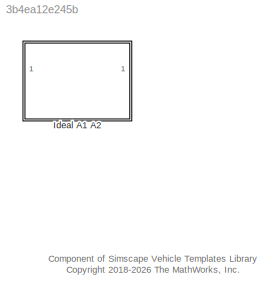
MODEL slx_3b4ea12e245b
KIND library
CONFIG SolverName = VariableStepAuto
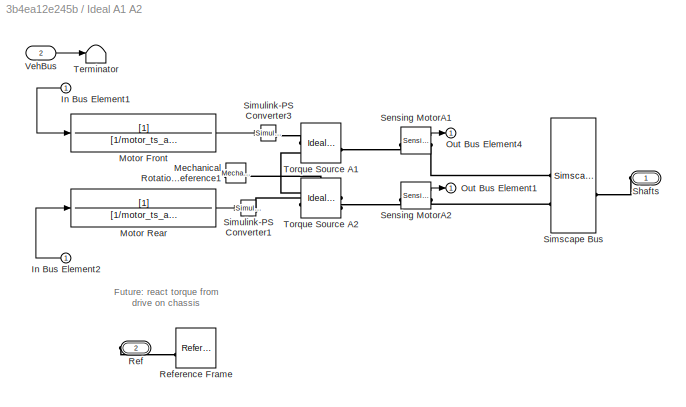
BLOCK [SubSystem] Ideal A1 A2
  VariantControl = IdealTwoMotor
BLOCK [Inport] Ideal A1 A2/In Bus Element1
BLOCK [Inport] Ideal A1 A2/In Bus Element2
BLOCK [Reference] Ideal A1 A2/Mechanical Rotational Reference1  REF=fl_lib/Mechanical/Rotational Elements/Mechanical
Rotational Reference
  NameLocation = top
  SourceBlock = fl_lib/Mechanical/Rotational Elements/Mechanical\nRotational Reference
  SourceType = Mechanical\nRotational Reference
BLOCK [TransferFcn] Ideal A1 A2/Motor Front
  Denominator = [1/motor_ts_a1 1]
BLOCK [TransferFcn] Ideal A1 A2/Motor Rear
  Denominator = [1/motor_ts_a2 1]
BLOCK [Outport] Ideal A1 A2/Out Bus Element1
  VectorParamsAs1DForOutWhenUnconnected = off
BLOCK [Outport] Ideal A1 A2/Out Bus Element4
  VectorParamsAs1DForOutWhenUnconnected = off
BLOCK [PMIOPort] Ideal A1 A2/Ref
  NameLocation = top
  Port = 2
  Side = Right
BLOCK [Reference] Ideal A1 A2/Reference Frame  REF=sm_lib/Frames and
Transforms/Reference
Frame
  NameLocation = top
  SourceBlock = sm_lib/Frames and\nTransforms/Reference\nFrame
  SourceType = Reference\nFrame
BLOCK [Reference] Ideal A1 A2/Sensing MotorA1  REF=Power_Components/Sensing Ideal Motor
  SourceBlock = Power_Components/Sensing Ideal Motor
  SourceType = SubSystem
BLOCK [Reference] Ideal A1 A2/Sensing MotorA2  REF=Power_Components/Sensing Ideal Motor
  SourceBlock = Power_Components/Sensing Ideal Motor
  SourceType = SubSystem
BLOCK [PMIOPort] Ideal A1 A2/Shafts
  NameLocation = top
  Side = Left
BLOCK [SimscapeBus] Ideal A1 A2/Simscape Bus
  HierarchyStrings = ShaftA1;ShaftA2
BLOCK [Reference] Ideal A1 A2/Simulink-PS Converter1  REF=nesl_utility/Simulink-PS
Converter
  SourceBlock = nesl_utility/Simulink-PS\nConverter
  SourceType = Simulink-PS\nConverter
BLOCK [Reference] Ideal A1 A2/Simulink-PS Converter3  REF=nesl_utility/Simulink-PS
Converter
  NameLocation = top
  SourceBlock = nesl_utility/Simulink-PS\nConverter
  SourceType = Simulink-PS\nConverter
BLOCK [Terminator] Ideal A1 A2/Terminator
BLOCK [Reference] Ideal A1 A2/Torque Source A1  REF=fl_lib/Mechanical/Mechanical Sources/Ideal Torque Source
  NameLocation = top
  SourceBlock = fl_lib/Mechanical/Mechanical Sources/Ideal Torque Source
  SourceType = Ideal Torque Source
BLOCK [Reference] Ideal A1 A2/Torque Source A2  REF=fl_lib/Mechanical/Mechanical Sources/Ideal Torque Source
  SourceBlock = fl_lib/Mechanical/Mechanical Sources/Ideal Torque Source
  SourceType = Ideal Torque Source
BLOCK [Inport] Ideal A1 A2/VehBus
  Port = 2
ANNOTATION (root): Component of Simscape Vehicle Templates Library <copyright redacted>
ANNOTATION Ideal A1 A2: Future: react torque from drive on chassis
LINE Ideal A1 A2/In Bus Element1:1 -> Ideal A1 A2/Motor Front:1
LINE Ideal A1 A2/In Bus Element2:1 -> Ideal A1 A2/Motor Rear:1
LINE Ideal A1 A2/Motor Front:1 -> Ideal A1 A2/Simulink-PS Converter3:1
LINE Ideal A1 A2/Motor Rear:1 -> Ideal A1 A2/Simulink-PS Converter1:1
LINE Ideal A1 A2/Sensing MotorA1:1 -> Ideal A1 A2/Out Bus Element4:1
LINE Ideal A1 A2/Sensing MotorA2:1 -> Ideal A1 A2/Out Bus Element1:1
LINE Ideal A1 A2/VehBus:1 -> Ideal A1 A2/Terminator:1
PNET net1: Ideal A1 A2/Mechanical Rotational Reference1:LConn1 -- Ideal A1 A2/Torque Source A1:RConn2 -- Ideal A1 A2/Torque Source A2:RConn2
PLINE Ideal A1 A2/Ref:RConn1 -- Ideal A1 A2/Reference Frame:RConn1
PLINE Ideal A1 A2/Sensing MotorA1:LConn1 -- Ideal A1 A2/Torque Source A1:LConn1
PLINE Ideal A1 A2/Sensing MotorA1:RConn1 -- Ideal A1 A2/Simscape Bus:LConn1
PLINE Ideal A1 A2/Sensing MotorA2:LConn1 -- Ideal A1 A2/Torque Source A2:LConn1
PLINE Ideal A1 A2/Sensing MotorA2:RConn1 -- Ideal A1 A2/Simscape Bus:LConn2
PLINE Ideal A1 A2/Shafts:RConn1 -- Ideal A1 A2/Simscape Bus:RConn1
PLINE Ideal A1 A2/Simulink-PS Converter1:RConn1 -- Ideal A1 A2/Torque Source A2:RConn1
PLINE Ideal A1 A2/Simulink-PS Converter3:RConn1 -- Ideal A1 A2/Torque Source A1:RConn1
note: PNET lines group multi-terminal physical nets as a canonical sorted terminal list (undirected conserving connections); 2-terminal nets keep the pairwise PLINE form
